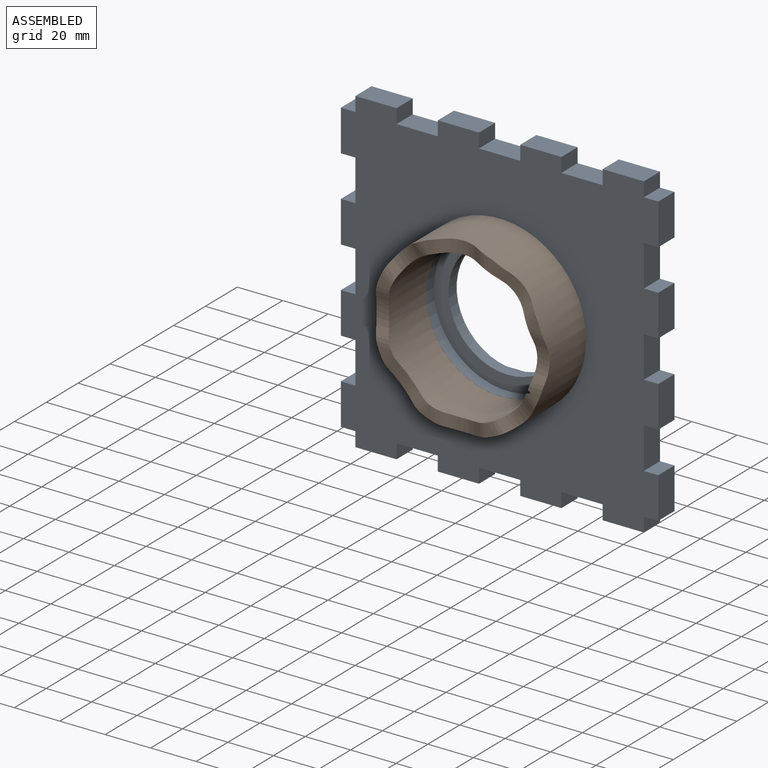
[diagram: assembled view]
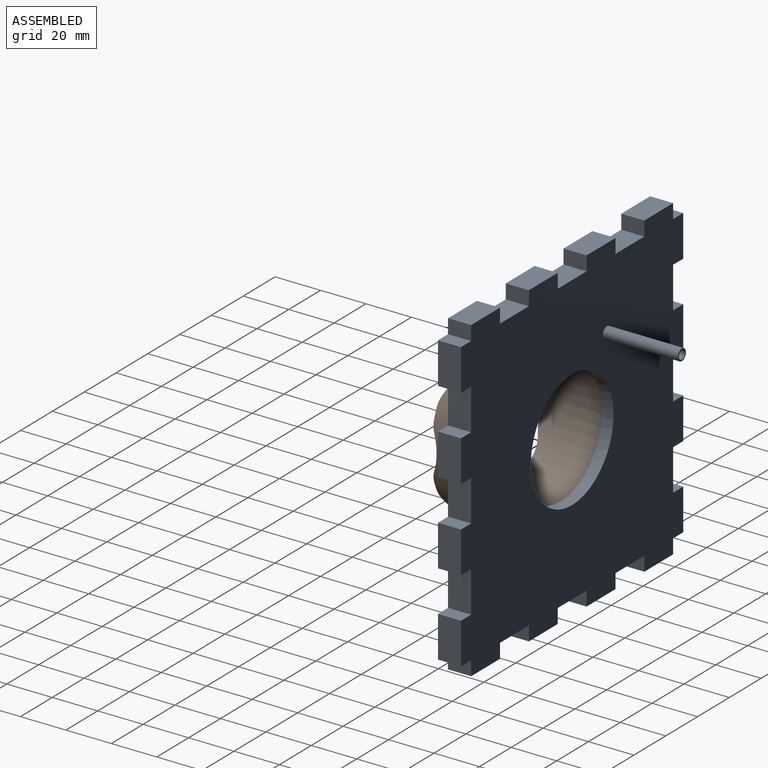
[diagram: assembled view, second angle]
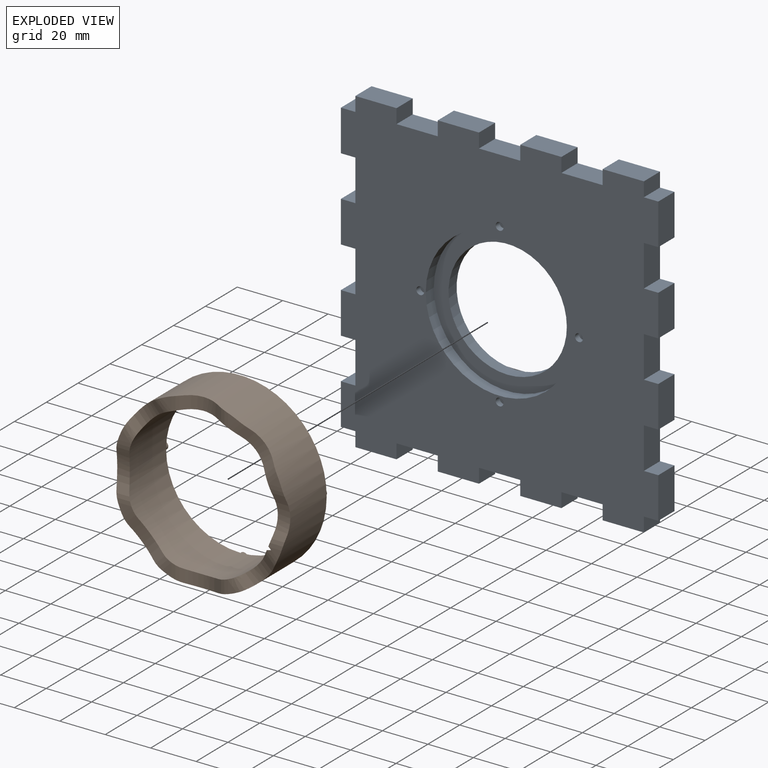
[diagram: exploded view]
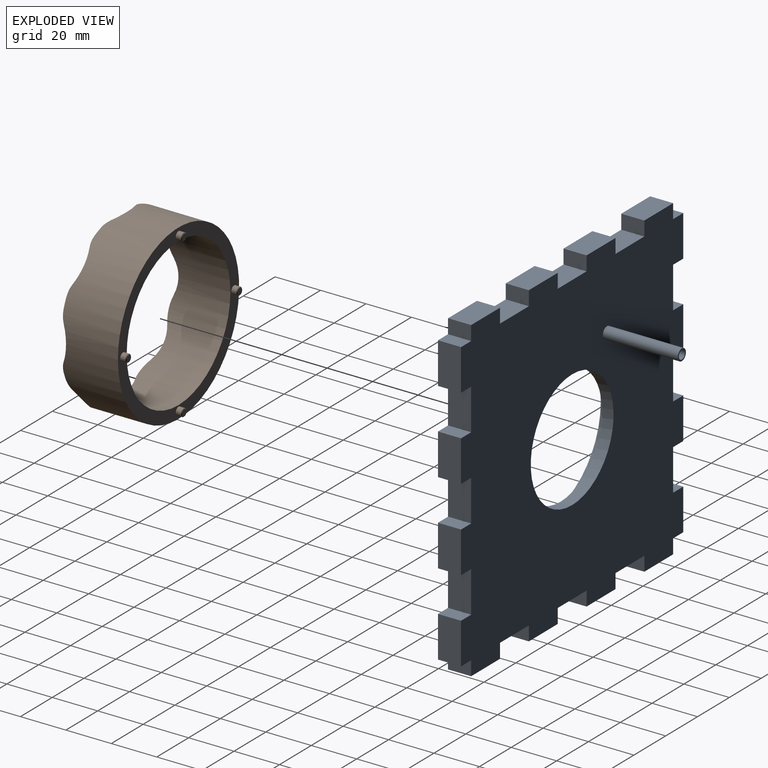
[diagram: exploded view, second angle]
ASSEMBLY  parts=2 mates=5
PART A: 77 faces, bbox 139.7x43.2x139.7 mm
  f0: plane 18.14x10.16mm, normal (-1,0,0), area 184.3mm2, adj f16,f17,f36,f37
  f1: plane 18.14x10.16mm, normal (-1,0,0), area 184.3mm2, adj f16,f17,f33,f34
  f2: plane 18.14x10.16mm, normal (-1,0,0), area 184.3mm2, adj f16,f17,f31,f57
  f3: plane 18.14x10.16mm, normal (-1,0,0), area 184.3mm2, adj f16,f17,f29,f39
  f4: plane 18.14x10.16mm, normal (0,0,-1), area 184.3mm2, adj f16,f17,f45,f56
  f5: plane 18.14x10.16mm, normal (0,0,-1), area 184.3mm2, adj f16,f17,f49,f55
  f6: plane 18.14x10.16mm, normal (0,0,-1), area 184.3mm2, adj f16,f17,f46,f51
  f7: plane 18.14x10.16mm, normal (0,0,-1), area 184.3mm2, adj f16,f17,f43,f48
  f8: plane 18.14x10.16mm, normal (1,0,0), area 184.3mm2, adj f16,f17,f42,f71
  f9: plane 18.14x10.16mm, normal (1,0,0), area 184.3mm2, adj f16,f17,f68,f72
  f10: plane 18.14x10.16mm, normal (1,0,0), area 184.3mm2, adj f16,f17,f53,f69
  f11: plane 18.14x10.16mm, normal (1,0,0), area 184.3mm2, adj f16,f17,f41,f54
  f12: plane 18.14x10.16mm, normal (0,0,1), area 184.3mm2, adj f16,f17,f52,f66
  f13: plane 18.14x10.16mm, normal (0,0,1), area 184.3mm2, adj f16,f17,f61,f64
  f14: plane 18.14x10.16mm, normal (0,0,1), area 184.3mm2, adj f16,f17,f58,f62
  f15: plane 18.14x10.16mm, normal (0,0,1), area 184.3mm2, adj f16,f17,f30,f59
  f16: plane 139.7x139.7mm, normal (0,-1,0), area 14614.1mm2, adj f0,f1,f2,f3,f4,f5,f6,f7
  f17: plane 139.7x139.7mm, normal (0,1,0), area 15822.6mm2, adj f0,f1,f2,f3,f4,f5,f6,f7
  f18: cylinder r=26.04mm len=52.07mm, axis (0,-1,0), area 831mm2, adj f17,f20
  f19: cylinder r=32.51mm len=65.02mm, axis (0,-1,0), area 1037.7mm2, adj f16,f20
  f20: plane 65.02x65.02mm, normal (0,-1,0), area 1191.3mm2, adj f18,f19
  f21: cylinder r=1.73mm len=3.45mm, axis (0,-1,0), area 27.6mm2, adj f16,f22
  f22: plane 3.45x3.45mm, normal (0,-1,0), area 9.4mm2, adj f21
  f23: cylinder r=1.73mm len=3.45mm, axis (0,-1,0), area 27.6mm2, adj f16,f24
  f24: plane 3.45x3.45mm, normal (0,-1,0), area 9.4mm2, adj f23
  f25: cylinder r=1.73mm len=3.45mm, axis (0,-1,0), area 27.6mm2, adj f16,f26
  f26: plane 3.45x3.45mm, normal (0,-1,0), area 9.4mm2, adj f25
  f27: cylinder r=1.73mm len=3.45mm, axis (0,-1,0), area 27.6mm2, adj f16,f28
  f28: plane 3.45x3.45mm, normal (0,-1,0), area 9.4mm2, adj f27
  f29: plane 10.16x6.35mm, normal (0,0,1), area 64.5mm2, adj f3,f16,f17,f30
  f30: plane 10.16x6.35mm, normal (-1,0,0), area 64.5mm2, adj f15,f16,f17,f29
  f31: plane 10.16x6.35mm, normal (0,0,1), area 64.5mm2, adj f2,f16,f17,f32
  f32: plane 18.14x10.16mm, normal (-1,0,0), area 184.3mm2, adj f16,f17,f31,f33
  f33: plane 10.16x6.35mm, normal (0,0,-1), area 64.5mm2, adj f1,f16,f17,f32
  f34: plane 10.16x6.35mm, normal (0,0,1), area 64.5mm2, adj f1,f16,f17,f35
  f35: plane 18.14x10.16mm, normal (-1,0,0), area 184.3mm2, adj f16,f17,f34,f36
  f36: plane 10.16x6.35mm, normal (0,0,-1), area 64.5mm2, adj f0,f16,f17,f35
  f37: plane 10.16x6.35mm, normal (0,0,1), area 64.5mm2, adj f0,f16,f17,f38
  f38: plane 18.14x10.16mm, normal (-1,0,0), area 184.3mm2, adj f16,f17,f37,f39
  f39: plane 10.16x6.35mm, normal (0,0,-1), area 64.5mm2, adj f3,f16,f17,f38
  f40: plane 18.14x10.16mm, normal (1,0,0), area 184.3mm2, adj f16,f17,f41,f42
  f41: plane 10.16x6.35mm, normal (0,0,1), area 64.5mm2, adj f11,f16,f17,f40
  f42: plane 10.16x6.35mm, normal (0,0,-1), area 64.5mm2, adj f8,f16,f17,f40
  f43: plane 10.16x6.35mm, normal (-1,0,0), area 64.5mm2, adj f7,f16,f17,f44
  f44: plane 18.14x10.16mm, normal (0,0,-1), area 184.3mm2, adj f16,f17,f43,f45
  f45: plane 10.16x6.35mm, normal (1,0,0), area 64.5mm2, adj f4,f16,f17,f44
  f46: plane 10.16x6.35mm, normal (-1,0,0), area 64.5mm2, adj f6,f16,f17,f47
  f47: plane 18.14x10.16mm, normal (0,0,-1), area 184.3mm2, adj f16,f17,f46,f48
  f48: plane 10.16x6.35mm, normal (1,0,0), area 64.5mm2, adj f7,f16,f17,f47
  f49: plane 10.16x6.35mm, normal (-1,0,0), area 64.5mm2, adj f5,f16,f17,f50
  f50: plane 18.14x10.16mm, normal (0,0,-1), area 184.3mm2, adj f16,f17,f49,f51
  f51: plane 10.16x6.35mm, normal (1,0,0), area 64.5mm2, adj f6,f16,f17,f50
  f52: plane 10.16x6.35mm, normal (1,0,0), area 64.5mm2, adj f12,f16,f17,f53
  f53: plane 10.16x6.35mm, normal (0,0,1), area 64.5mm2, adj f10,f16,f17,f52
  f54: plane 10.16x6.35mm, normal (0,0,-1), area 64.5mm2, adj f11,f16,f17,f55
  f55: plane 10.16x6.35mm, normal (1,0,0), area 64.5mm2, adj f5,f16,f17,f54
  f56: plane 10.16x6.35mm, normal (-1,0,0), area 64.5mm2, adj f4,f16,f17,f57
  f57: plane 10.16x6.35mm, normal (0,0,-1), area 64.5mm2, adj f2,f16,f17,f56
  f58: plane 10.16x6.35mm, normal (-1,0,0), area 64.5mm2, adj f14,f16,f17,f60
  f59: plane 10.16x6.35mm, normal (1,0,0), area 64.5mm2, adj f15,f16,f17,f60
  f60: plane 18.14x10.16mm, normal (0,0,1), area 184.3mm2, adj f16,f17,f58,f59
  f61: plane 10.16x6.35mm, normal (-1,0,0), area 64.5mm2, adj f13,f16,f17,f63
  f62: plane 10.16x6.35mm, normal (1,0,0), area 64.5mm2, adj f14,f16,f17,f63
  f63: plane 18.14x10.16mm, normal (0,0,1), area 184.3mm2, adj f16,f17,f61,f62
  f64: plane 10.16x6.35mm, normal (1,0,0), area 64.5mm2, adj f13,f16,f17,f65
  f65: plane 18.14x10.16mm, normal (0,0,1), area 184.3mm2, adj f16,f17,f64,f66
  f66: plane 10.16x6.35mm, normal (-1,0,0), area 64.5mm2, adj f12,f16,f17,f65
  f67: plane 18.14x10.16mm, normal (1,0,0), area 184.3mm2, adj f16,f17,f68,f69
  f68: plane 10.16x6.35mm, normal (0,0,1), area 64.5mm2, adj f9,f16,f17,f67
  f69: plane 10.16x6.35mm, normal (0,0,-1), area 64.5mm2, adj f10,f16,f17,f67
  f70: plane 18.14x10.16mm, normal (1,0,0), area 184.3mm2, adj f16,f17,f71,f72
  f71: plane 10.16x6.35mm, normal (0,0,1), area 64.5mm2, adj f8,f16,f17,f70
  f72: plane 10.16x6.35mm, normal (0,0,-1), area 64.5mm2, adj f9,f16,f17,f70
  f73: cylinder r=2.54mm len=33.02mm, axis (0,-1,0), area 527mm2, adj f17,f74
  f74: plane 5.08x5.08mm, normal (0,1,0), area 8.9mm2, adj f73,f75
  f75: cylinder r=1.91mm len=12.7mm, axis (0,1,0), area 152mm2, adj f74,f76
  f76: plane 3.81x3.81mm, normal (0,1,0), area 11.4mm2, adj f75
PART B: 48 faces, bbox 76.2x28x76.2 mm
  f0: plane 5.89x4.17mm, normal (0,-1,0), area 12.5mm2, adj f7,f25,f26
  f1: cylinder r=19.05mm len=14.57mm, axis (0.71,0,0.71), area 86.8mm2, adj f7,f24,f26,f35
  f2: plane 5.89x4.17mm, normal (0,-1,0), area 12.5mm2, adj f7,f23,f24
  f3: plane 5.89x4.17mm, normal (0,-1,0), area 12.5mm2, adj f7,f33,f34
  f4: cylinder r=19.05mm len=14.57mm, axis (0.71,0,0.71), area 86.8mm2, adj f7,f32,f34,f35
  f5: plane 5.89x4.17mm, normal (0,-1,0), area 12.5mm2, adj f7,f31,f32
  f6: plane 76.2x76.2mm, normal (0,1,0), area 1187.1mm2, adj f7,f35,f36,f38,f40,f42
  f7: cylinder r=38.1mm len=76.2mm, axis (0,1,0), area 5803.9mm2, adj f0,f1,f2,f3,f4,f5,f6,f8
  f8: cylinder r=19.05mm len=14.97mm, axis (0,0,1), area 80.1mm2, adj f7,f21,f23,f35
  f9: cylinder r=19.05mm len=14.97mm, axis (1,0,0), area 86.8mm2, adj f7,f19,f33,f35
  f10: plane 5.49x3.87mm, normal (0,-1,0), area 10.8mm2, adj f7,f21,f22
  f11: plane 5.58x3.93mm, normal (0,-1,0), area 11.1mm2, adj f7,f19,f20
  f12: plane 5.81x4.13mm, normal (0,-1,0), area 12.2mm2, adj f7,f29,f30
  f13: cylinder r=19.05mm len=14.97mm, axis (0,0,1), area 86.8mm2, adj f7,f27,f31,f35
  f14: cylinder r=19.05mm len=14.97mm, axis (1,0,0), area 86.8mm2, adj f7,f25,f29,f35
  f15: plane 5.89x4.19mm, normal (0,-1,0), area 12.5mm2, adj f7,f27,f28
  f16: plane 0.82x0.82mm, normal (-0.71,0,0.71), area 0.1mm2, adj f7,f17
  f17: cylinder r=19.05mm len=15.36mm, axis (0.71,0,-0.71), area 85.9mm2, adj f7,f16,f20,f22,f35
  f18: cylinder r=19.05mm len=14.6mm, axis (0.71,0,-0.71), area 86.9mm2, adj f7,f28,f30,f35
  f19: cylinder r=12.7mm len=7.2mm, axis (1,0,0), area 29.5mm2, adj f7,f9,f11,f20,f35
  f20: bspline ~8.95x8.94mm, area 30.2mm2, adj f7,f11,f17,f19,f35
  f21: cylinder r=12.7mm len=7.19mm, axis (0,0,1), area 29.5mm2, adj f7,f8,f10,f22,f35
  f22: bspline ~8.94x8.93mm, area 30.2mm2, adj f7,f10,f17,f21,f35
  f23: cylinder r=12.7mm len=7.25mm, axis (0,0,1), area 29.5mm2, adj f2,f7,f8,f24,f35
  f24: cylinder r=12.7mm len=8.65mm, axis (0.71,0,0.71), area 29.5mm2, adj f1,f2,f7,f23,f35
  f25: cylinder r=12.7mm len=7.25mm, axis (1,0,0), area 29.5mm2, adj f0,f7,f14,f26,f35
  f26: cylinder r=12.7mm len=8.65mm, axis (0.71,0,0.71), area 29.5mm2, adj f0,f1,f7,f25,f35
  f27: cylinder r=12.7mm len=7.25mm, axis (0,0,1), area 29.6mm2, adj f7,f13,f15,f35
  f28: bspline ~8.68x8.67mm, area 29.7mm2, adj f7,f15,f18,f35
  f29: cylinder r=12.7mm len=7.24mm, axis (1,0,0), area 29.5mm2, adj f7,f12,f14,f30,f35
  f30: bspline ~8.86x8.85mm, area 29.6mm2, adj f7,f12,f18,f29,f35
  f31: cylinder r=12.7mm len=7.25mm, axis (0,0,1), area 29.5mm2, adj f5,f7,f13,f32,f35
  f32: cylinder r=12.7mm len=8.65mm, axis (0.71,0,0.71), area 29.5mm2, adj f4,f5,f7,f31,f35
  f33: cylinder r=12.7mm len=7.25mm, axis (1,0,0), area 29.5mm2, adj f3,f7,f9,f34,f35
  f34: cylinder r=12.7mm len=8.65mm, axis (0.71,0,0.71), area 29.5mm2, adj f3,f4,f7,f33,f35
  f35: cylinder r=32.59mm len=65.18mm, axis (0,-1,0), area 5021.9mm2, adj f1,f4,f6,f8,f9,f13,f14,f17
  f36: cylinder r=1.71mm len=3.43mm, axis (0,-1,0), area 24.6mm2, adj f6,f46
  f37: plane 2.92x2.92mm, normal (0,1,0), area 6.7mm2, adj f46
  f38: cylinder r=1.71mm len=3.43mm, axis (0,-1,0), area 24.6mm2, adj f6,f47
  f39: plane 2.92x2.92mm, normal (0,1,0), area 6.7mm2, adj f47
  f40: cylinder r=1.71mm len=3.43mm, axis (0,-1,0), area 24.6mm2, adj f6,f44
  f41: plane 2.92x2.92mm, normal (0,1,0), area 6.7mm2, adj f44
  f42: cylinder r=1.71mm len=3.43mm, axis (0,-1,0), area 24.6mm2, adj f6,f45
  f43: plane 2.92x2.92mm, normal (0,1,0), area 6.7mm2, adj f45
  f44: cone r=1.46mm half-angle=45deg, axis (0,-1,0), area 3.6mm2, adj f40,f41
  f45: cone r=1.46mm half-angle=45deg, axis (0,-1,0), area 3.6mm2, adj f42,f43
  f46: cone r=1.46mm half-angle=45deg, axis (0,-1,0), area 3.6mm2, adj f36,f37
  f47: cone r=1.46mm half-angle=45deg, axis (0,-1,0), area 3.6mm2, adj f38,f39
PLACE A t=(-19.41,-2.77,-3.79)mm
PLACE B t=(-19.41,-12.93,-3.79)mm
MATE slider B.f40 <-> A.f21  axis (0,-1,0) through (-19.41,-12.93,-38.72)mm
MATE planar A.f23 <-> B.f42  axis (0,-1,0) through (15.51,-10.39,-3.79)mm
MATE slider B.f7 <-> A.f18  axis (0,-1,0) through (-19.41,-25.7,-3.79)mm
MATE slider B.f36 <-> A.f25  axis (0,1,0) through (-19.41,-10.64,31.13)mm
MATE slider B.f42 <-> A.f23  axis (0,-1,0) through (15.51,-11.79,-3.79)mm
